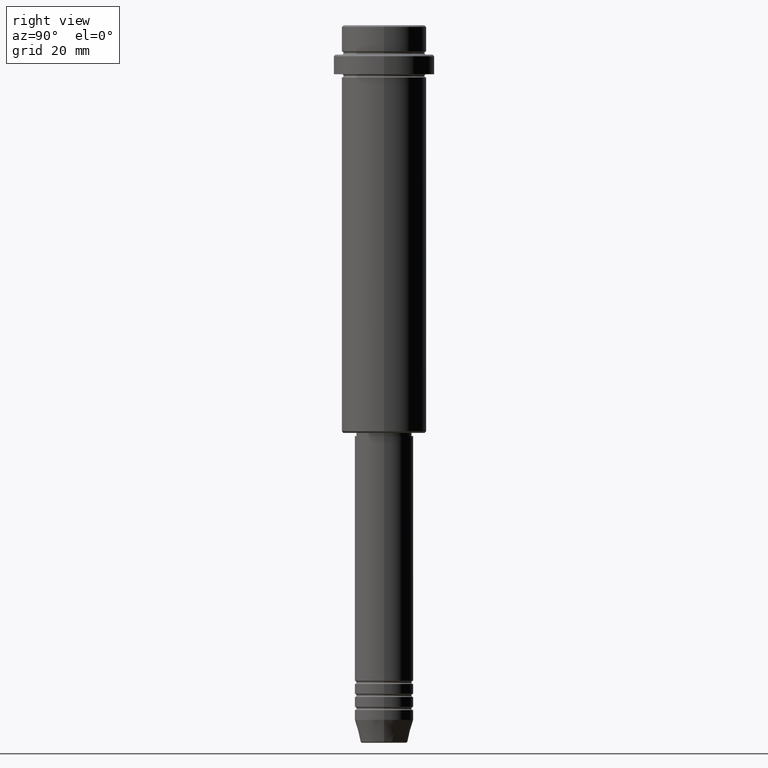
[diagram: clean part render]
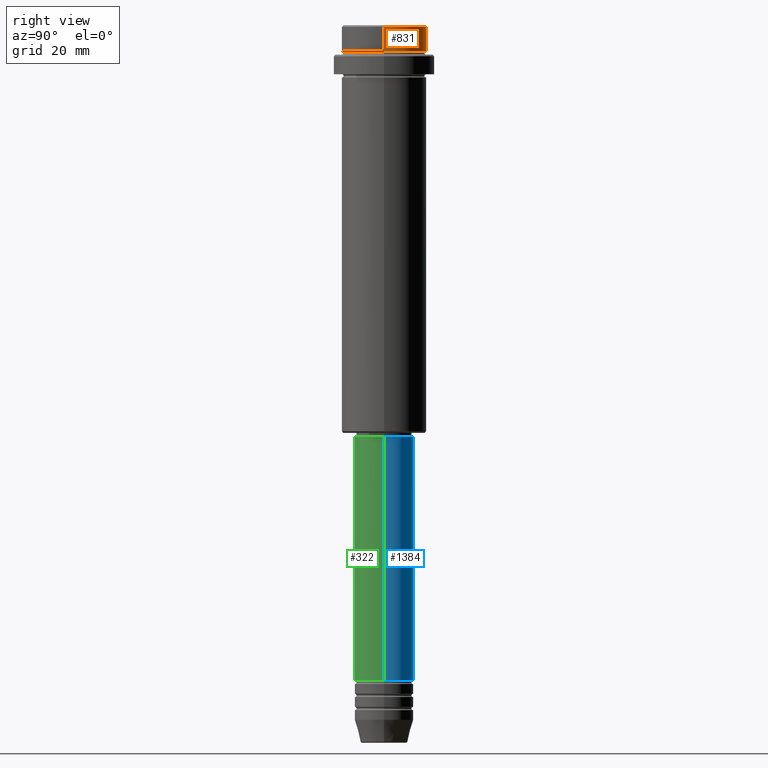
[diagram: same view with three faces highlighted in distinct colors, each labeled with its STEP entity id]
A machine part, right view with three faces highlighted in distinct colors.
Their STEP definitions:

[orange] entity #831 — the highlighted cylindrical surface (partial cylindrical patch) has radius 13 mm, axis along (-0, -0, 1).
#15 = DIRECTION ( 'NONE',  ( -0.000000000000000000, -0.000000000000000000, 1.000000000000000000 ) ) ;
#38 = EDGE_CURVE ( 'NONE', #368, #1091, #726, .T. ) ;
#111 = AXIS2_PLACEMENT_3D ( 'NONE', #996, #15, #467 ) ;
#121 = FACE_OUTER_BOUND ( 'NONE', #143, .T. ) ;
#143 = EDGE_LOOP ( 'NONE', ( #669, #1149, #374, #323 ) ) ;
#241 = CYLINDRICAL_SURFACE ( 'NONE', #111, 12.99999999999999822 ) ;
#261 = DIRECTION ( 'NONE',  ( 1.000000000000000000, 0.000000000000000000, 0.000000000000000000 ) ) ;
#323 = ORIENTED_EDGE ( 'NONE', *, *, #638, .F. ) ;
#334 = LINE ( 'NONE', #544, #801 ) ;
#368 = VERTEX_POINT ( 'NONE', #633 ) ;
#374 = ORIENTED_EDGE ( 'NONE', *, *, #38, .T. ) ;
#401 = EDGE_CURVE ( 'NONE', #1272, #368, #334, .T. ) ;
#467 = DIRECTION ( 'NONE',  ( 1.000000000000000000, 0.000000000000000000, 0.000000000000000000 ) ) ;
#515 = CARTESIAN_POINT ( 'NONE',  ( 0.000000000000000000, 0.000000000000000000, -7.999999999999998224 ) ) ;
#544 = CARTESIAN_POINT ( 'NONE',  ( -12.99999999999999822, 1.592040838891558898E-15, 0.000000000000000000 ) ) ;
#601 = DIRECTION ( 'NONE',  ( -0.000000000000000000, -0.000000000000000000, 1.000000000000000000 ) ) ;
#633 = CARTESIAN_POINT ( 'NONE',  ( -12.99999999999999822, 1.592040838891558898E-15, -0.4999999999999483746 ) ) ;
#638 = EDGE_CURVE ( 'NONE', #1082, #1091, #701, .T. ) ;
#669 = ORIENTED_EDGE ( 'NONE', *, *, #805, .T. ) ;
#684 = CIRCLE ( 'NONE', #845, 12.99999999999999822 ) ;
#701 = LINE ( 'NONE', #1115, #821 ) ;
#726 = CIRCLE ( 'NONE', #1138, 12.99999999999999822 ) ;
#801 = VECTOR ( 'NONE', #1310, 1000.000000000000000 ) ;
#805 = EDGE_CURVE ( 'NONE', #1082, #1272, #684, .T. ) ;
#821 = VECTOR ( 'NONE', #601, 1000.000000000000000 ) ;
#831 = ADVANCED_FACE ( 'NONE', ( #121 ), #241, .T. ) ;
#845 = AXIS2_PLACEMENT_3D ( 'NONE', #515, #1246, #261 ) ;
#921 = CARTESIAN_POINT ( 'NONE',  ( 0.000000000000000000, 0.000000000000000000, -0.4999999999999483746 ) ) ;
#949 = DIRECTION ( 'NONE',  ( 1.000000000000000000, 0.000000000000000000, 0.000000000000000000 ) ) ;
#996 = CARTESIAN_POINT ( 'NONE',  ( 0.000000000000000000, 0.000000000000000000, 0.000000000000000000 ) ) ;
#1057 = DIRECTION ( 'NONE',  ( 0.000000000000000000, 0.000000000000000000, -1.000000000000000000 ) ) ;
#1060 = CARTESIAN_POINT ( 'NONE',  ( 12.99999999999999822, 0.000000000000000000, -0.4999999999999483746 ) ) ;
#1082 = VERTEX_POINT ( 'NONE', #1383 ) ;
#1091 = VERTEX_POINT ( 'NONE', #1060 ) ;
#1115 = CARTESIAN_POINT ( 'NONE',  ( 12.99999999999999822, 0.000000000000000000, 0.000000000000000000 ) ) ;
#1138 = AXIS2_PLACEMENT_3D ( 'NONE', #921, #1057, #949 ) ;
#1149 = ORIENTED_EDGE ( 'NONE', *, *, #401, .T. ) ;
#1246 = DIRECTION ( 'NONE',  ( -0.000000000000000000, -0.000000000000000000, 1.000000000000000000 ) ) ;
#1272 = VERTEX_POINT ( 'NONE', #1412 ) ;
#1310 = DIRECTION ( 'NONE',  ( -0.000000000000000000, -0.000000000000000000, 1.000000000000000000 ) ) ;
#1383 = CARTESIAN_POINT ( 'NONE',  ( 12.99999999999999822, 0.000000000000000000, -7.999999999999998224 ) ) ;
#1412 = CARTESIAN_POINT ( 'NONE',  ( -12.99999999999999822, 1.592040838891558898E-15, -7.999999999999998224 ) ) ;

[blue] entity #1384 — the highlighted cylindrical surface (edge-blend (fillet) strip) has radius 9 mm, axis along (-0, -0, 1).
#1 = AXIS2_PLACEMENT_3D ( 'NONE', #595, #590, #1345 ) ;
#11 = CARTESIAN_POINT ( 'NONE',  ( 0.000000000000000000, 0.000000000000000000, -126.0000000000000000 ) ) ;
#17 = DIRECTION ( 'NONE',  ( -0.000000000000000000, -0.000000000000000000, 1.000000000000000000 ) ) ;
#62 = VERTEX_POINT ( 'NONE', #635 ) ;
#182 = DIRECTION ( 'NONE',  ( -0.000000000000000000, -0.000000000000000000, 1.000000000000000000 ) ) ;
#192 = VERTEX_POINT ( 'NONE', #436 ) ;
#254 = LINE ( 'NONE', #694, #561 ) ;
#257 = EDGE_CURVE ( 'NONE', #62, #192, #670, .T. ) ;
#264 = CARTESIAN_POINT ( 'NONE',  ( -9.000000000000001776, 1.102182119232617911E-15, -126.0000000000000000 ) ) ;
#339 = EDGE_CURVE ( 'NONE', #192, #922, #400, .T. ) ;
#353 = ORIENTED_EDGE ( 'NONE', *, *, #1248, .F. ) ;
#400 = LINE ( 'NONE', #836, #640 ) ;
#436 = CARTESIAN_POINT ( 'NONE',  ( -9.000000000000000000, 1.102182119232617714E-15, -200.9999999999999147 ) ) ;
#453 = ORIENTED_EDGE ( 'NONE', *, *, #945, .F. ) ;
#513 = EDGE_LOOP ( 'NONE', ( #919, #1170, #353, #453 ) ) ;
#554 = CARTESIAN_POINT ( 'NONE',  ( 9.000000000000001776, 0.000000000000000000, -126.0000000000000000 ) ) ;
#561 = VECTOR ( 'NONE', #1020, 1000.000000000000000 ) ;
#573 = CIRCLE ( 'NONE', #1117, 9.000000000000001776 ) ;
#590 = DIRECTION ( 'NONE',  ( -0.000000000000000000, -0.000000000000000000, 1.000000000000000000 ) ) ;
#595 = CARTESIAN_POINT ( 'NONE',  ( 0.000000000000000000, 0.000000000000000000, 0.000000000000000000 ) ) ;
#635 = CARTESIAN_POINT ( 'NONE',  ( 9.000000000000000000, 0.000000000000000000, -200.9999999999999147 ) ) ;
#640 = VECTOR ( 'NONE', #182, 1000.000000000000000 ) ;
#670 = CIRCLE ( 'NONE', #1033, 9.000000000000000000 ) ;
#694 = CARTESIAN_POINT ( 'NONE',  ( 9.000000000000001776, 0.000000000000000000, 0.000000000000000000 ) ) ;
#721 = VERTEX_POINT ( 'NONE', #554 ) ;
#787 = DIRECTION ( 'NONE',  ( -0.000000000000000000, -0.000000000000000000, 1.000000000000000000 ) ) ;
#836 = CARTESIAN_POINT ( 'NONE',  ( -9.000000000000001776, 1.102182119232617911E-15, 0.000000000000000000 ) ) ;
#919 = ORIENTED_EDGE ( 'NONE', *, *, #257, .T. ) ;
#922 = VERTEX_POINT ( 'NONE', #264 ) ;
#945 = EDGE_CURVE ( 'NONE', #62, #721, #254, .T. ) ;
#1000 = CARTESIAN_POINT ( 'NONE',  ( 0.000000000000000000, 0.000000000000000000, -200.9999999999999147 ) ) ;
#1020 = DIRECTION ( 'NONE',  ( -0.000000000000000000, -0.000000000000000000, 1.000000000000000000 ) ) ;
#1033 = AXIS2_PLACEMENT_3D ( 'NONE', #1000, #17, #1333 ) ;
#1117 = AXIS2_PLACEMENT_3D ( 'NONE', #11, #787, #1298 ) ;
#1124 = FACE_OUTER_BOUND ( 'NONE', #513, .T. ) ;
#1134 = CYLINDRICAL_SURFACE ( 'NONE', #1, 9.000000000000001776 ) ;
#1170 = ORIENTED_EDGE ( 'NONE', *, *, #339, .T. ) ;
#1248 = EDGE_CURVE ( 'NONE', #721, #922, #573, .T. ) ;
#1298 = DIRECTION ( 'NONE',  ( 1.000000000000000000, 0.000000000000000000, 0.000000000000000000 ) ) ;
#1333 = DIRECTION ( 'NONE',  ( 1.000000000000000000, 0.000000000000000000, 0.000000000000000000 ) ) ;
#1345 = DIRECTION ( 'NONE',  ( 1.000000000000000000, 0.000000000000000000, 0.000000000000000000 ) ) ;
#1384 = ADVANCED_FACE ( 'NONE', ( #1124 ), #1134, .T. ) ;

[green] entity #322 — the highlighted cylindrical surface (edge-blend (fillet) strip) has radius 9 mm, axis along (-0, -0, 1).
#33 = CARTESIAN_POINT ( 'NONE',  ( 0.000000000000000000, 0.000000000000000000, -126.0000000000000000 ) ) ;
#62 = VERTEX_POINT ( 'NONE', #635 ) ;
#108 = EDGE_CURVE ( 'NONE', #192, #62, #1022, .T. ) ;
#146 = CIRCLE ( 'NONE', #931, 9.000000000000001776 ) ;
#182 = DIRECTION ( 'NONE',  ( -0.000000000000000000, -0.000000000000000000, 1.000000000000000000 ) ) ;
#183 = ORIENTED_EDGE ( 'NONE', *, *, #339, .F. ) ;
#192 = VERTEX_POINT ( 'NONE', #436 ) ;
#210 = AXIS2_PLACEMENT_3D ( 'NONE', #520, #1044, #1274 ) ;
#253 = DIRECTION ( 'NONE',  ( 1.000000000000000000, 0.000000000000000000, 0.000000000000000000 ) ) ;
#254 = LINE ( 'NONE', #694, #561 ) ;
#264 = CARTESIAN_POINT ( 'NONE',  ( -9.000000000000001776, 1.102182119232617911E-15, -126.0000000000000000 ) ) ;
#322 = ADVANCED_FACE ( 'NONE', ( #609 ), #415, .T. ) ;
#339 = EDGE_CURVE ( 'NONE', #192, #922, #400, .T. ) ;
#400 = LINE ( 'NONE', #836, #640 ) ;
#415 = CYLINDRICAL_SURFACE ( 'NONE', #210, 9.000000000000001776 ) ;
#419 = EDGE_LOOP ( 'NONE', ( #183, #542, #1396, #1360 ) ) ;
#436 = CARTESIAN_POINT ( 'NONE',  ( -9.000000000000000000, 1.102182119232617714E-15, -200.9999999999999147 ) ) ;
#478 = DIRECTION ( 'NONE',  ( -0.000000000000000000, -0.000000000000000000, 1.000000000000000000 ) ) ;
#520 = CARTESIAN_POINT ( 'NONE',  ( 0.000000000000000000, 0.000000000000000000, 0.000000000000000000 ) ) ;
#542 = ORIENTED_EDGE ( 'NONE', *, *, #108, .T. ) ;
#548 = DIRECTION ( 'NONE',  ( 1.000000000000000000, 0.000000000000000000, 0.000000000000000000 ) ) ;
#554 = CARTESIAN_POINT ( 'NONE',  ( 9.000000000000001776, 0.000000000000000000, -126.0000000000000000 ) ) ;
#561 = VECTOR ( 'NONE', #1020, 1000.000000000000000 ) ;
#609 = FACE_OUTER_BOUND ( 'NONE', #419, .T. ) ;
#635 = CARTESIAN_POINT ( 'NONE',  ( 9.000000000000000000, 0.000000000000000000, -200.9999999999999147 ) ) ;
#640 = VECTOR ( 'NONE', #182, 1000.000000000000000 ) ;
#694 = CARTESIAN_POINT ( 'NONE',  ( 9.000000000000001776, 0.000000000000000000, 0.000000000000000000 ) ) ;
#704 = AXIS2_PLACEMENT_3D ( 'NONE', #881, #761, #548 ) ;
#721 = VERTEX_POINT ( 'NONE', #554 ) ;
#761 = DIRECTION ( 'NONE',  ( -0.000000000000000000, -0.000000000000000000, 1.000000000000000000 ) ) ;
#836 = CARTESIAN_POINT ( 'NONE',  ( -9.000000000000001776, 1.102182119232617911E-15, 0.000000000000000000 ) ) ;
#881 = CARTESIAN_POINT ( 'NONE',  ( 0.000000000000000000, 0.000000000000000000, -200.9999999999999147 ) ) ;
#922 = VERTEX_POINT ( 'NONE', #264 ) ;
#931 = AXIS2_PLACEMENT_3D ( 'NONE', #33, #478, #253 ) ;
#945 = EDGE_CURVE ( 'NONE', #62, #721, #254, .T. ) ;
#1020 = DIRECTION ( 'NONE',  ( -0.000000000000000000, -0.000000000000000000, 1.000000000000000000 ) ) ;
#1022 = CIRCLE ( 'NONE', #704, 9.000000000000000000 ) ;
#1044 = DIRECTION ( 'NONE',  ( -0.000000000000000000, -0.000000000000000000, 1.000000000000000000 ) ) ;
#1274 = DIRECTION ( 'NONE',  ( 1.000000000000000000, 0.000000000000000000, 0.000000000000000000 ) ) ;
#1308 = EDGE_CURVE ( 'NONE', #922, #721, #146, .T. ) ;
#1360 = ORIENTED_EDGE ( 'NONE', *, *, #1308, .F. ) ;
#1396 = ORIENTED_EDGE ( 'NONE', *, *, #945, .T. ) ;